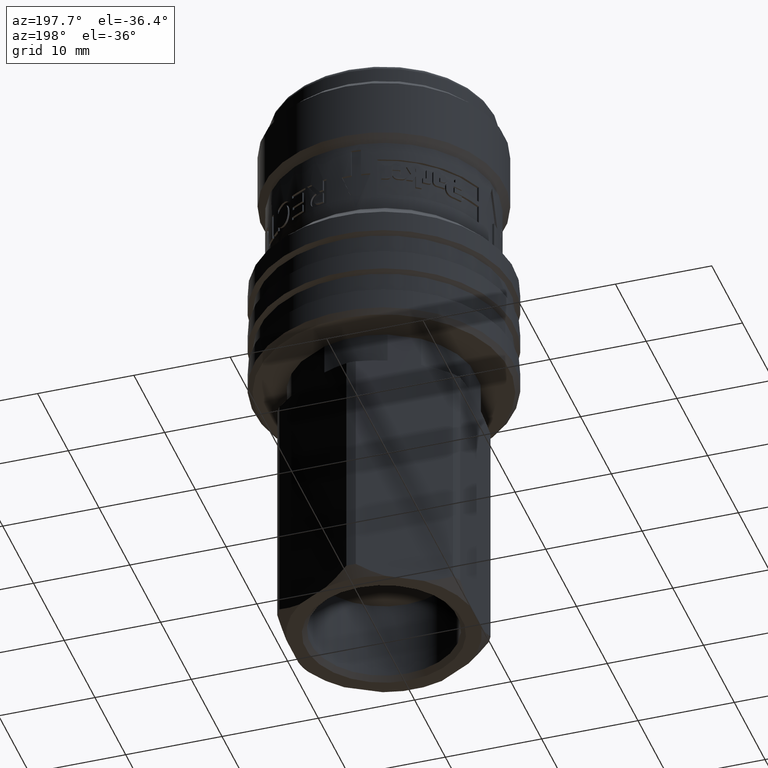
[diagram: clean part render]
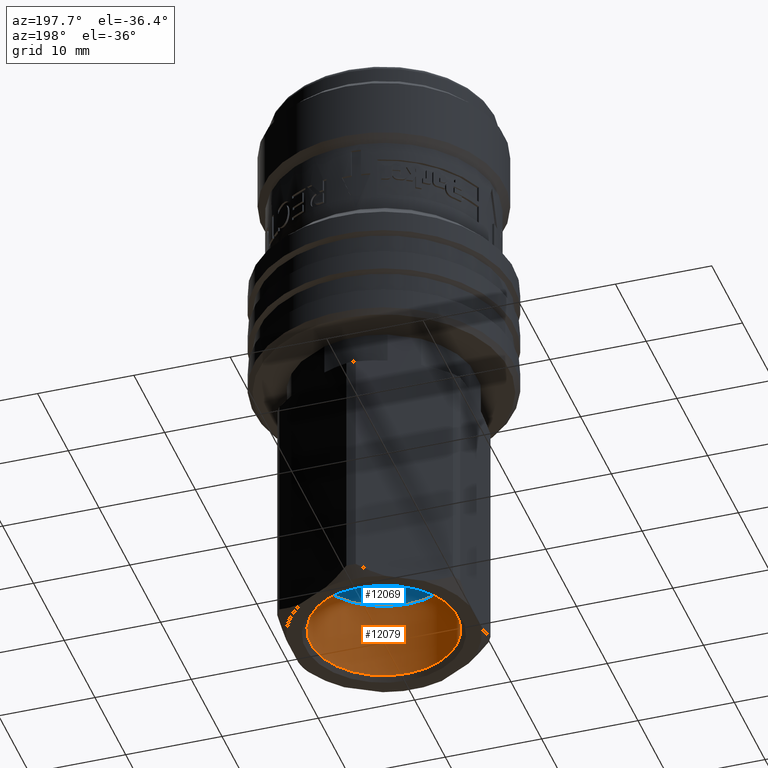
[diagram: same view with the hole feature highlighted: cylindrical wall and planar end face, labeled with their STEP entity ids]
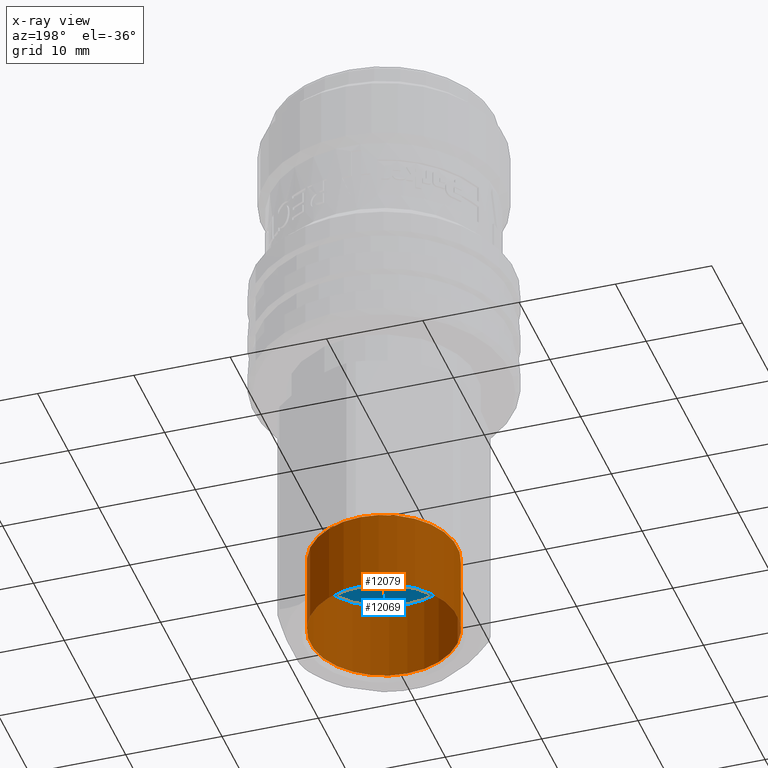
[diagram: x-ray of the same camera — body ghosted, the hole faces saturated]
A machine part, auxiliary view. The highlighted faces form one hole feature of diameter 15.25 mm: the cylindrical wall (entity #12079, orange) and its adjacent planar end face (entity #12069, blue) — they share a circular edge in the B-rep.
The next image is the same camera in x-ray (body ghosted, the hole faces saturated) — the bore reads through the body.
Wall:
#1074=FACE_BOUND($,#3505,.T.);
#1188=CYLINDRICAL_SURFACE($,#12772,7.625);
#2841=FACE_OUTER_BOUND($,#3504,.T.);
#3504=EDGE_LOOP($,(#7546));
#3505=EDGE_LOOP($,(#7547));
#4244=CIRCLE($,#12747,7.625);
#4253=CIRCLE($,#12764,7.625);
#4471=VERTEX_POINT($,#15392);
#4506=VERTEX_POINT($,#15499);
#5682=EDGE_CURVE($,#4471,#4471,#4244,.T.);
#5722=EDGE_CURVE($,#4506,#4506,#4253,.T.);
#7546=ORIENTED_EDGE($,*,*,#5682,.T.);
#7547=ORIENTED_EDGE($,*,*,#5722,.F.);
#12079=ADVANCED_FACE($,(#2841,#1074),#1188,.F.);
#12747=AXIS2_PLACEMENT_3D($,#15393,#13373,#13374);
#12764=AXIS2_PLACEMENT_3D($,#15500,#13426,#13427);
#12772=AXIS2_PLACEMENT_3D($,#15517,#13445,#13446);
#13373=DIRECTION('center_axis',(0.,0.,1.));
#13374=DIRECTION('ref_axis',(0.,1.,0.));
#13426=DIRECTION('center_axis',(0.,0.,1.));
#13427=DIRECTION('ref_axis',(0.,-1.,0.));
#13445=DIRECTION('center_axis',(0.,0.,-1.));
#13446=DIRECTION('ref_axis',(0.,1.,0.));
#15392=CARTESIAN_POINT('',(9.33793184349857E-016,-7.625,-34.7390797450453));
#15393=CARTESIAN_POINT('Origin',(0.,0.,-34.7390797450453));
#15499=CARTESIAN_POINT('',(-9.33793184349857E-016,7.625,-43.25));
#15500=CARTESIAN_POINT('Origin',(0.,0.,-43.25));
#15517=CARTESIAN_POINT('Origin',(0.,0.,-37.75));
End face:
#2831=FACE_OUTER_BOUND($,#3492,.T.);
#3492=EDGE_LOOP($,(#7487));
#4244=CIRCLE($,#12747,7.625);
#4471=VERTEX_POINT($,#15392);
#5682=EDGE_CURVE($,#4471,#4471,#4244,.T.);
#7487=ORIENTED_EDGE($,*,*,#5682,.F.);
#11097=PLANE($,#12746);
#12069=ADVANCED_FACE($,(#2831),#11097,.T.);
#12746=AXIS2_PLACEMENT_3D($,#15391,#13371,#13372);
#12747=AXIS2_PLACEMENT_3D($,#15393,#13373,#13374);
#13371=DIRECTION('center_axis',(0.,0.,-1.));
#13372=DIRECTION('ref_axis',(-1.,0.,0.));
#13373=DIRECTION('center_axis',(0.,0.,1.));
#13374=DIRECTION('ref_axis',(0.,1.,0.));
#15391=CARTESIAN_POINT('Origin',(0.,0.,-34.7390797450453));
#15392=CARTESIAN_POINT('',(9.33793184349857E-016,-7.625,-34.7390797450453));
#15393=CARTESIAN_POINT('Origin',(0.,0.,-34.7390797450453));